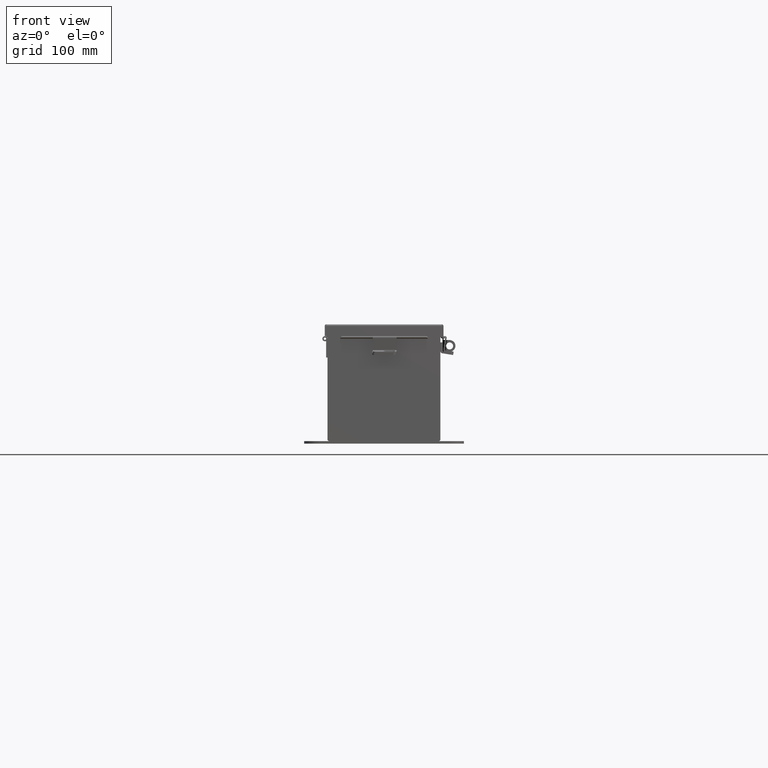
[diagram: clean part render]
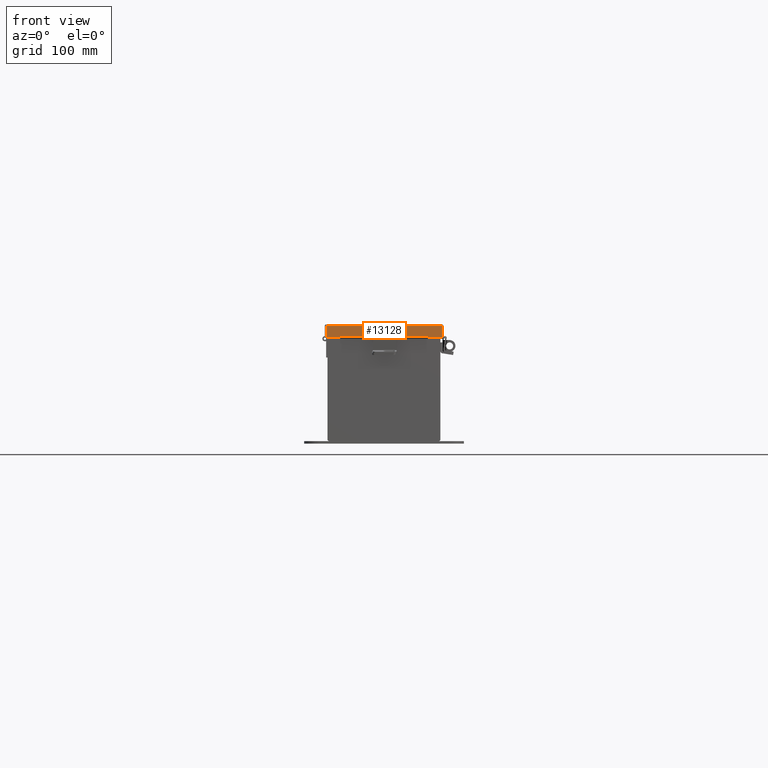
[diagram: same view with one face highlighted and labeled with its STEP entity id]
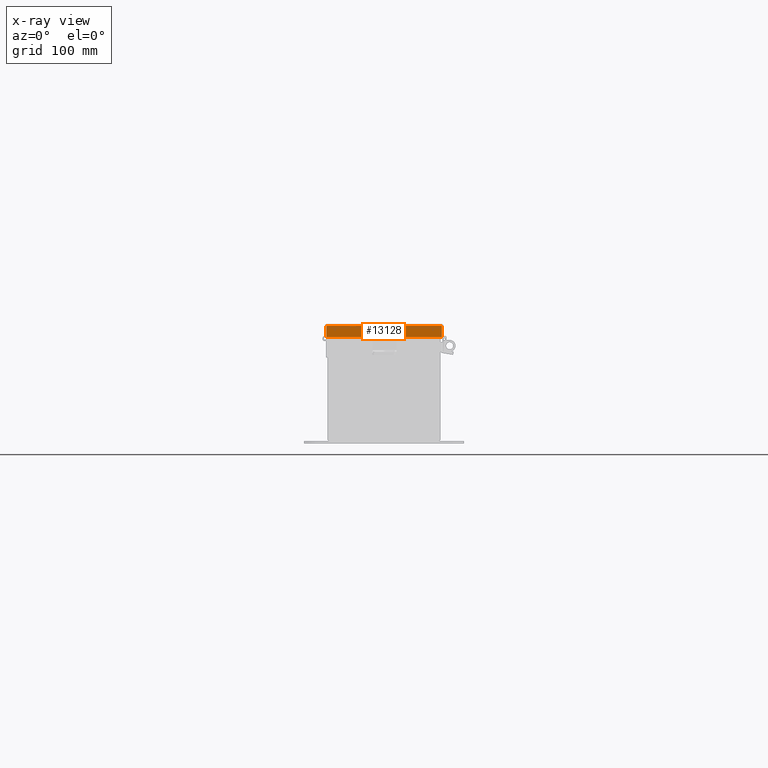
[diagram: x-ray of the same camera — body ghosted, the highlighted face saturated]
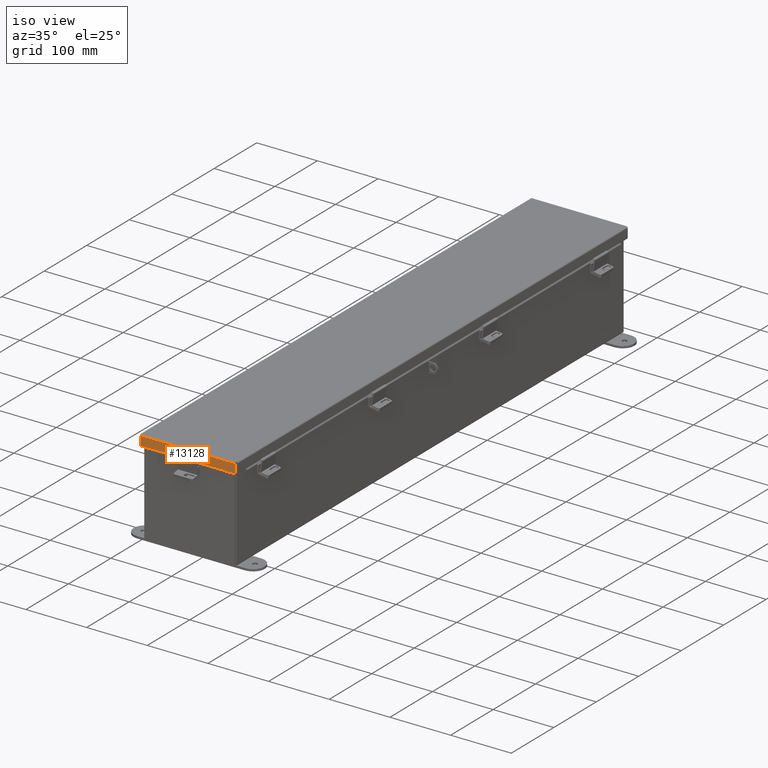
[diagram: same view with one face highlighted and labeled with its STEP entity id]
A machine part, front view. The second image highlights one B-rep face of the part: STEP entity #13128.
The next image is the same camera in x-ray: the body ghosted, the highlighted face saturated — about 0% of this face is hidden behind the body in this view.
A second angle (iso view) of the same face is appended — the face is thin or edge-on in the first view.
In plain terms, the highlighted planar face has unit normal (0, 1, -0).
Its self-contained STEP definition (entity closure, byte-faithful):
#826 = CARTESIAN_POINT ( 'NONE',  ( 1.707404996040164500E-017, -18.15625000000000400, 0.6123000000000005100 ) ) ;
#1521 = DIRECTION ( 'NONE',  ( -1.577721810442017300E-030, -3.569293475308505600E-015, 1.000000000000000000 ) ) ;
#2861 = EDGE_CURVE ( 'NONE', #8678, #29098, #14178, .T. ) ;
#3910 = DIRECTION ( 'NONE',  ( -1.000000000000000000, 6.862141890461225700E-030, -1.577721810442017300E-030 ) ) ;
#3935 = VECTOR ( 'NONE', #16864, 39.37007874015748100 ) ;
#4417 = VECTOR ( 'NONE', #23508, 39.37007874015748100 ) ;
#4477 = VERTEX_POINT ( 'NONE', #20437 ) ;
#4522 = ORIENTED_EDGE ( 'NONE', *, *, #20645, .F. ) ;
#5028 = ORIENTED_EDGE ( 'NONE', *, *, #2861, .F. ) ;
#5078 = ORIENTED_EDGE ( 'NONE', *, *, #7405, .F. ) ;
#5477 = FACE_OUTER_BOUND ( 'NONE', #22270, .T. ) ;
#5847 = DIRECTION ( 'NONE',  ( 1.000000000000000000, -6.825164035528992100E-030, 1.577721810442017300E-030 ) ) ;
#6195 = CARTESIAN_POINT ( 'NONE',  ( -3.156250000000008000, -18.15625000000000000, 0.01300000000000010700 ) ) ;
#6360 = VERTEX_POINT ( 'NONE', #9796 ) ;
#6820 = VECTOR ( 'NONE', #24922, 39.37007874015748100 ) ;
#7036 = ORIENTED_EDGE ( 'NONE', *, *, #13042, .F. ) ;
#7281 = VECTOR ( 'NONE', #27758, 39.37007874015748100 ) ;
#7405 = EDGE_CURVE ( 'NONE', #29098, #19841, #25589, .T. ) ;
#7440 = VECTOR ( 'NONE', #21461, 39.37007874015748100 ) ;
#7485 = CARTESIAN_POINT ( 'NONE',  ( 3.074478932188145400, -18.15625000000000000, -6.447161265047661700E-014 ) ) ;
#7519 = EDGE_CURVE ( 'NONE', #8678, #4477, #22690, .T. ) ;
#7623 = VECTOR ( 'NONE', #26419, 39.37007874015748100 ) ;
#8678 = VERTEX_POINT ( 'NONE', #19962 ) ;
#8804 = VECTOR ( 'NONE', #3910, 39.37007874015748100 ) ;
#8877 = CARTESIAN_POINT ( 'NONE',  ( 2.324478932188145400, -18.15625000000000700, 0.5967115427318804300 ) ) ;
#9796 = CARTESIAN_POINT ( 'NONE',  ( 2.324478932188145400, -18.15625000000000400, 0.5967115427318804300 ) ) ;
#10326 = LINE ( 'NONE', #12368, #15735 ) ;
#10581 = EDGE_CURVE ( 'NONE', #15306, #6360, #10326, .T. ) ;
#10773 = ORIENTED_EDGE ( 'NONE', *, *, #16377, .T. ) ;
#11675 = CARTESIAN_POINT ( 'NONE',  ( -3.074478932188144900, -18.15625000000000000, 0.0000000000000000000 ) ) ;
#12138 = CARTESIAN_POINT ( 'NONE',  ( -3.074478932188144900, -18.15625000000000000, 0.01300000000000010700 ) ) ;
#12248 = ORIENTED_EDGE ( 'NONE', *, *, #7519, .T. ) ;
#12368 = CARTESIAN_POINT ( 'NONE',  ( -2.324478932188145400, -18.15625000000000700, 0.5967115427318804300 ) ) ;
#13042 = EDGE_CURVE ( 'NONE', #20102, #15306, #14442, .T. ) ;
#13128 = ADVANCED_FACE ( 'NONE', ( #5477 ), #22062, .F. ) ;
#13801 = CARTESIAN_POINT ( 'NONE',  ( -2.324478932188145400, -18.15625000000000400, 0.6123000000000005100 ) ) ;
#14178 = LINE ( 'NONE', #6195, #8804 ) ;
#14442 = LINE ( 'NONE', #21776, #7623 ) ;
#14552 = CARTESIAN_POINT ( 'NONE',  ( 1.707404996040164500E-017, -18.15625000000000400, 0.6123000000000005100 ) ) ;
#15102 = CARTESIAN_POINT ( 'NONE',  ( -2.324478932188145400, -18.15625000000000400, 0.5967115427318804300 ) ) ;
#15245 = DIRECTION ( 'NONE',  ( -6.839395068795317000E-030, 1.000000000000000000, 3.569293475308505600E-015 ) ) ;
#15306 = VERTEX_POINT ( 'NONE', #15102 ) ;
#15661 = CARTESIAN_POINT ( 'NONE',  ( 2.324478932188146300, -18.15625000000000400, 0.6123000000000005100 ) ) ;
#15735 = VECTOR ( 'NONE', #5847, 39.37007874015748100 ) ;
#16377 = EDGE_CURVE ( 'NONE', #4477, #26345, #19636, .T. ) ;
#16864 = DIRECTION ( 'NONE',  ( -1.000000000000000000, 6.875600298652696700E-030, 1.081919997490648100E-017 ) ) ;
#16876 = LINE ( 'NONE', #8877, #6820 ) ;
#19636 = LINE ( 'NONE', #826, #7440 ) ;
#19841 = VERTEX_POINT ( 'NONE', #19928 ) ;
#19928 = CARTESIAN_POINT ( 'NONE',  ( -3.074478932188144900, -18.15625000000000400, 0.6123000000000005100 ) ) ;
#19962 = CARTESIAN_POINT ( 'NONE',  ( 3.074478932188144900, -18.15625000000000000, 0.01300000000000010700 ) ) ;
#20102 = VERTEX_POINT ( 'NONE', #13801 ) ;
#20437 = CARTESIAN_POINT ( 'NONE',  ( 3.074478932188145400, -18.15625000000000400, 0.6123000000000005100 ) ) ;
#20645 = EDGE_CURVE ( 'NONE', #6360, #26345, #16876, .T. ) ;
#21461 = DIRECTION ( 'NONE',  ( -1.000000000000000000, 6.875600298652696700E-030, 1.081919997490648100E-017 ) ) ;
#21776 = CARTESIAN_POINT ( 'NONE',  ( -2.324478932188145400, -18.15625000000000700, 0.6122999999999994000 ) ) ;
#22062 = PLANE ( 'NONE',  #26164 ) ;
#22216 = LINE ( 'NONE', #14552, #3935 ) ;
#22270 = EDGE_LOOP ( 'NONE', ( #7036, #25367, #5078, #5028, #12248, #10773, #4522, #25295 ) ) ;
#22690 = LINE ( 'NONE', #7485, #4417 ) ;
#23508 = DIRECTION ( 'NONE',  ( -1.577721810442017300E-030, -3.569293475308505600E-015, 1.000000000000000000 ) ) ;
#24922 = DIRECTION ( 'NONE',  ( -1.577721810442017300E-030, 1.401985044024236100E-013, 1.000000000000000000 ) ) ;
#25243 = EDGE_CURVE ( 'NONE', #20102, #19841, #22216, .T. ) ;
#25295 = ORIENTED_EDGE ( 'NONE', *, *, #10581, .F. ) ;
#25367 = ORIENTED_EDGE ( 'NONE', *, *, #25243, .T. ) ;
#25589 = LINE ( 'NONE', #11675, #7281 ) ;
#26164 = AXIS2_PLACEMENT_3D ( 'NONE', #29000, #15245, #1521 ) ;
#26345 = VERTEX_POINT ( 'NONE', #15661 ) ;
#26419 = DIRECTION ( 'NONE',  ( -1.752481305030316300E-014, -1.401985044024248200E-013, -1.000000000000000000 ) ) ;
#27758 = DIRECTION ( 'NONE',  ( -1.577721810442017300E-030, -3.569293475308505600E-015, 1.000000000000000000 ) ) ;
#29000 = CARTESIAN_POINT ( 'NONE',  ( 9.604153102725926100E-018, -18.15625000000000000, -6.447161265047661700E-014 ) ) ;
#29098 = VERTEX_POINT ( 'NONE', #12138 ) ;